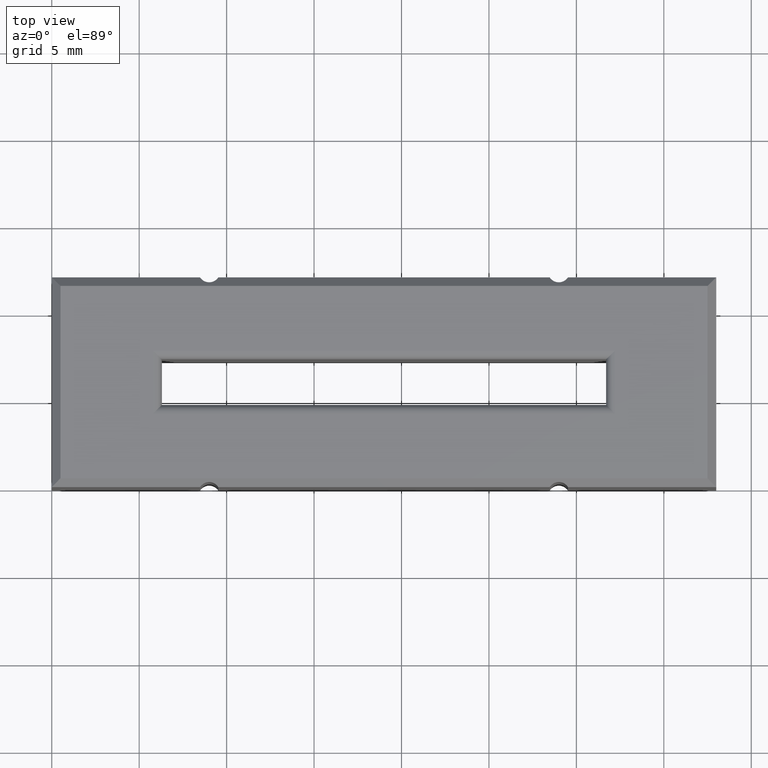
[diagram: clean part render]
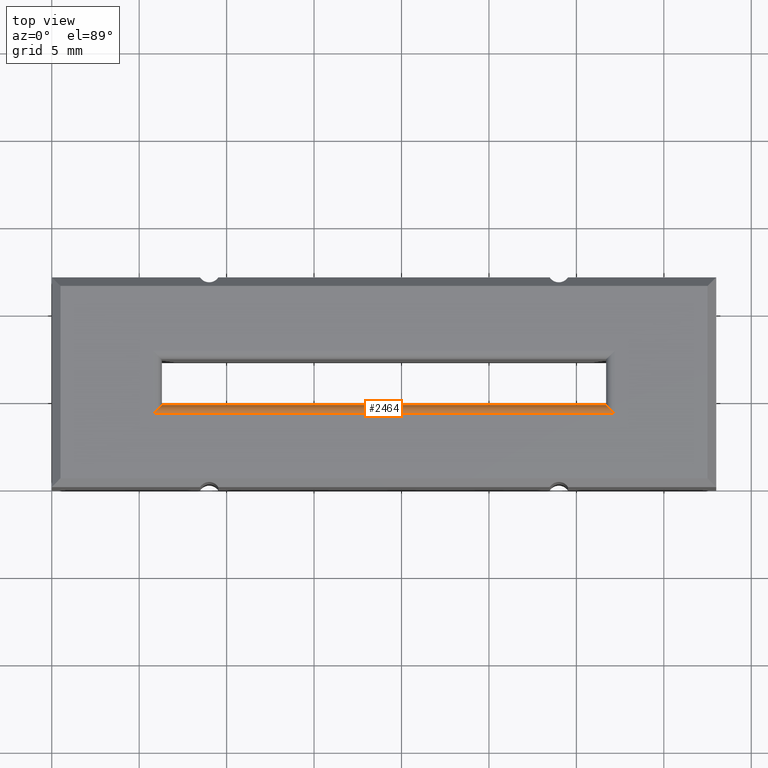
[diagram: same view with one face highlighted and labeled with its STEP entity id]
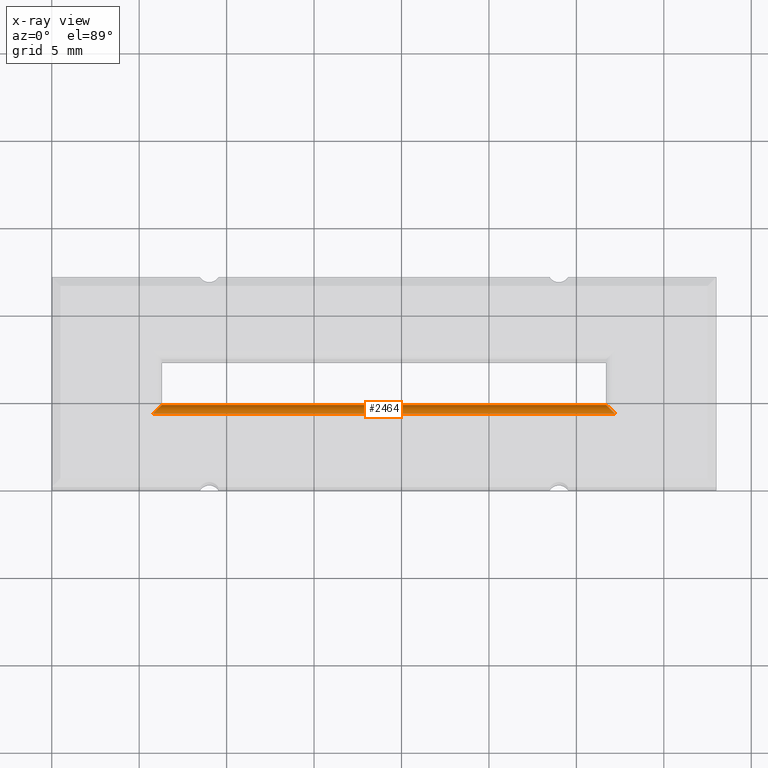
[diagram: x-ray of the same camera — body ghosted, the highlighted face saturated]
A machine part, top view. The second image highlights one B-rep face of the part: STEP entity #2464.
The next image is the same camera in x-ray: the body ghosted, the highlighted face saturated — about 0% of this face is hidden behind the body in this view.
In plain terms, the highlighted cylindrical surface (edge-blend (fillet) strip) has radius 0.5 mm, axis along (-1, -0, 0).
Its self-contained STEP definition (entity closure, byte-faithful):
#5 = ORIENTED_EDGE ( 'NONE', *, *, #98, .T. ) ;
#65 = CARTESIAN_POINT ( 'NONE',  ( 6.299999999999996270, 4.199999999999992184, 12.19999999999999929 ) ) ;
#85 = DIRECTION ( 'NONE',  ( 1.000000000000000000, 5.463695987328524465E-16, 0.000000000000000000 ) ) ;
#98 = EDGE_CURVE ( 'NONE', #1796, #1011, #1913, .T. ) ;
#114 = EDGE_CURVE ( 'NONE', #1593, #1011, #1163, .T. ) ;
#196 =( BOUNDED_CURVE ( )  B_SPLINE_CURVE ( 3, ( #2813, #1500, #2273, #1036 ),
 .UNSPECIFIED., .F., .T. ) 
 B_SPLINE_CURVE_WITH_KNOTS ( ( 4, 4 ),
 ( 3.141592653589793116, 4.712388980384689674 ),
 .UNSPECIFIED. ) 
 CURVE ( )  GEOMETRIC_REPRESENTATION_ITEM ( )  RATIONAL_B_SPLINE_CURVE ( ( 1.000000000000000000, 0.8047378541243649375, 0.8047378541243649375, 1.000000000000000000 ) ) 
 REPRESENTATION_ITEM ( '' )  );
#209 = CARTESIAN_POINT ( 'NONE',  ( 6.299999999999996270, 4.699999999999992184, 12.19999999999999929 ) ) ;
#297 = EDGE_CURVE ( 'NONE', #3294, #1593, #196, .T. ) ;
#468 = VECTOR ( 'NONE', #689, 1000.000000000000000 ) ;
#689 = DIRECTION ( 'NONE',  ( -1.000000000000000000, -5.463695987328524465E-16, -0.000000000000000000 ) ) ;
#697 = AXIS2_PLACEMENT_3D ( 'NONE', #65, #868, #2372 ) ;
#852 = EDGE_LOOP ( 'NONE', ( #5, #3058, #1571, #1763 ) ) ;
#868 = DIRECTION ( 'NONE',  ( -1.000000000000000000, -5.463695987328524465E-16, 0.000000000000000000 ) ) ;
#882 = EDGE_CURVE ( 'NONE', #1796, #3294, #1858, .T. ) ;
#891 = CARTESIAN_POINT ( 'NONE',  ( 5.799999999999998046, 4.199999999999992184, 12.69999999999999929 ) ) ;
#1011 = VERTEX_POINT ( 'NONE', #891 ) ;
#1036 = CARTESIAN_POINT ( 'NONE',  ( 32.20000000000000284, 4.200000000000005507, 12.69999999999999929 ) ) ;
#1037 = CARTESIAN_POINT ( 'NONE',  ( 31.70000000000000639, 4.700000000000006395, 12.19999999999999929 ) ) ;
#1131 = CARTESIAN_POINT ( 'NONE',  ( 31.70000000000000639, 4.700000000000006395, 12.19999999999999929 ) ) ;
#1163 = LINE ( 'NONE', #2955, #468 ) ;
#1408 = CARTESIAN_POINT ( 'NONE',  ( 6.299999999999997158, 4.699999999999992184, 12.49289321881345138 ) ) ;
#1500 = CARTESIAN_POINT ( 'NONE',  ( 31.70000000000000639, 4.700000000000005507, 12.49289321881345138 ) ) ;
#1571 = ORIENTED_EDGE ( 'NONE', *, *, #297, .F. ) ;
#1593 = VERTEX_POINT ( 'NONE', #3074 ) ;
#1763 = ORIENTED_EDGE ( 'NONE', *, *, #882, .F. ) ;
#1796 = VERTEX_POINT ( 'NONE', #209 ) ;
#1858 = LINE ( 'NONE', #1037, #1871 ) ;
#1871 = VECTOR ( 'NONE', #85, 1000.000000000000000 ) ;
#1913 =( BOUNDED_CURVE ( )  B_SPLINE_CURVE ( 3, ( #1971, #1408, #2428, #2988 ),
 .UNSPECIFIED., .F., .T. ) 
 B_SPLINE_CURVE_WITH_KNOTS ( ( 4, 4 ),
 ( 3.141592653589793116, 4.712388980384689674 ),
 .UNSPECIFIED. ) 
 CURVE ( )  GEOMETRIC_REPRESENTATION_ITEM ( )  RATIONAL_B_SPLINE_CURVE ( ( 1.000000000000000000, 0.8047378541243649375, 0.8047378541243649375, 1.000000000000000000 ) ) 
 REPRESENTATION_ITEM ( '' )  );
#1971 = CARTESIAN_POINT ( 'NONE',  ( 6.299999999999996270, 4.699999999999992184, 12.19999999999999929 ) ) ;
#2273 = CARTESIAN_POINT ( 'NONE',  ( 31.90710678118654897, 4.492893218813458489, 12.70000000000000107 ) ) ;
#2340 = FACE_OUTER_BOUND ( 'NONE', #852, .T. ) ;
#2372 = DIRECTION ( 'NONE',  ( 0.000000000000000000, -1.000000000000000000, 0.000000000000000000 ) ) ;
#2428 = CARTESIAN_POINT ( 'NONE',  ( 6.092893218813448364, 4.492893218813444278, 12.70000000000000107 ) ) ;
#2464 = ADVANCED_FACE ( 'NONE', ( #2340 ), #2614, .T. ) ;
#2614 = CYLINDRICAL_SURFACE ( 'NONE', #697, 0.5000000000000000000 ) ;
#2813 = CARTESIAN_POINT ( 'NONE',  ( 31.70000000000000639, 4.700000000000006395, 12.19999999999999929 ) ) ;
#2955 = CARTESIAN_POINT ( 'NONE',  ( 6.299999999999996270, 4.199999999999992184, 12.69999999999999929 ) ) ;
#2988 = CARTESIAN_POINT ( 'NONE',  ( 5.799999999999998046, 4.199999999999992184, 12.69999999999999929 ) ) ;
#3058 = ORIENTED_EDGE ( 'NONE', *, *, #114, .F. ) ;
#3074 = CARTESIAN_POINT ( 'NONE',  ( 32.20000000000000284, 4.200000000000005507, 12.69999999999999929 ) ) ;
#3294 = VERTEX_POINT ( 'NONE', #1131 ) ;